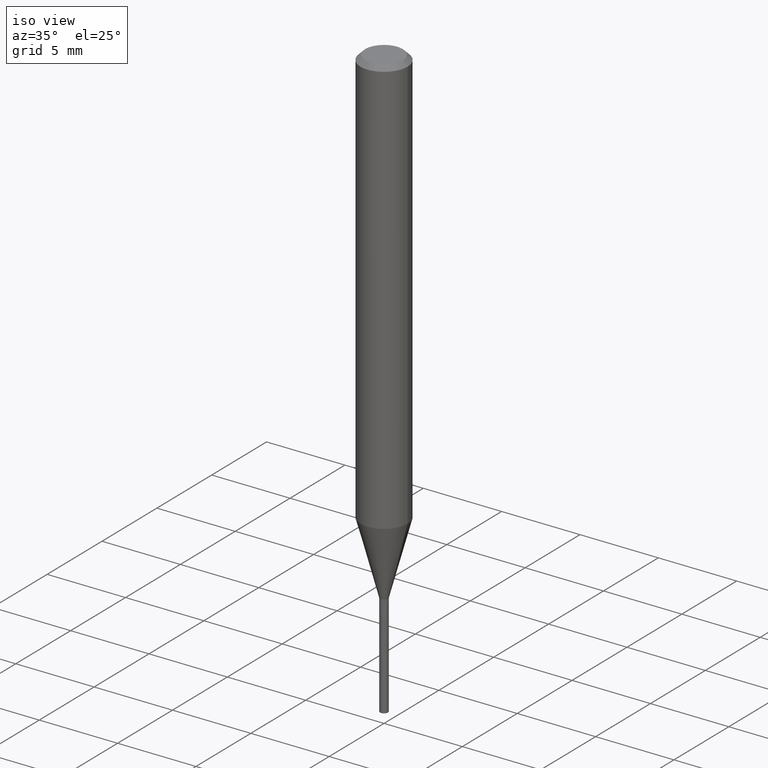
[diagram: clean part render]
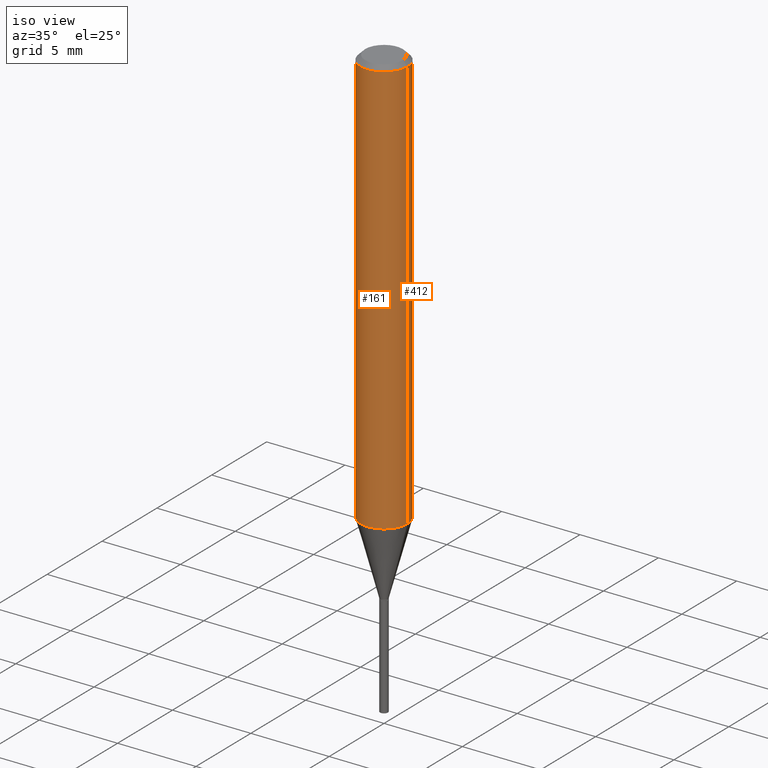
[diagram: same view with one multi-face feature highlighted, each face labeled with its STEP entity id]
A machine part, iso view. The highlighted faces form ONE feature: a constant-radius fillet chain: 2 tangent blend faces with common blend radius 1.4999 mm. The faces share edges in the B-rep.
Their STEP definitions:
[1] entity #412 (Cylinder):
#17 = EDGE_CURVE ( 'NONE', #196, #307, #276, .T. ) ;
#51 = EDGE_CURVE ( 'NONE', #307, #475, #291, .T. ) ;
#94 = DIRECTION ( 'NONE',  ( 1.000000000000000000, -6.982962677686266711E-15, 4.876176775795936353E-29 ) ) ;
#136 = LINE ( 'NONE', #470, #257 ) ;
#146 = EDGE_CURVE ( 'NONE', #270, #475, #318, .T. ) ;
#180 = FACE_OUTER_BOUND ( 'NONE', #373, .T. ) ;
#182 = AXIS2_PLACEMENT_3D ( 'NONE', #403, #409, #303 ) ;
#196 = VERTEX_POINT ( 'NONE', #225 ) ;
#200 = ORIENTED_EDGE ( 'NONE', *, *, #146, .F. ) ;
#203 = CARTESIAN_POINT ( 'NONE',  ( 0.05904999999999999832, -4.535783407291118600E-16, -0.01181000000000007218 ) ) ;
#213 = CARTESIAN_POINT ( 'NONE',  ( -0.05905000000000013016, -3.245373470817042452E-15, -1.049683100267611247 ) ) ;
#225 = CARTESIAN_POINT ( 'NONE',  ( 0.05905000000000013016, -4.077292902400757654E-15, -1.049683100267611247 ) ) ;
#234 = CARTESIAN_POINT ( 'NONE',  ( -0.05904999999999999832, -1.433516189981219950E-15, -0.01181000000000007218 ) ) ;
#257 = VECTOR ( 'NONE', #448, 39.37007874015748143 ) ;
#270 = VERTEX_POINT ( 'NONE', #203 ) ;
#276 = CIRCLE ( 'NONE', #430, 0.05905000000000013710 ) ;
#287 = CARTESIAN_POINT ( 'NONE',  ( 0.000000000000000000, 0.000000000000000000, 0.000000000000000000 ) ) ;
#291 = LINE ( 'NONE', #374, #484 ) ;
#299 = CYLINDRICAL_SURFACE ( 'NONE', #473, 0.05905000000000006771 ) ;
#302 = EDGE_CURVE ( 'NONE', #196, #270, #136, .T. ) ;
#303 = DIRECTION ( 'NONE',  ( 1.000000000000000000, -6.982962677686266711E-15, 0.000000000000000000 ) ) ;
#307 = VERTEX_POINT ( 'NONE', #213 ) ;
#311 = ORIENTED_EDGE ( 'NONE', *, *, #51, .T. ) ;
#318 = CIRCLE ( 'NONE', #182, 0.05904999999999999832 ) ;
#331 = DIRECTION ( 'NONE',  ( 1.000000000000000000, -6.982962677686264344E-15, 0.000000000000000000 ) ) ;
#369 = ORIENTED_EDGE ( 'NONE', *, *, #302, .F. ) ;
#373 = EDGE_LOOP ( 'NONE', ( #411, #311, #200, #369 ) ) ;
#374 = CARTESIAN_POINT ( 'NONE',  ( -0.05905000000000006771, 4.195754854663396409E-16, -2.904631170795525045E-30 ) ) ;
#378 = CARTESIAN_POINT ( 'NONE',  ( 2.566967278084148050E-29, -3.664948956283382734E-15, -1.049683100267611247 ) ) ;
#403 = CARTESIAN_POINT ( 'NONE',  ( 2.888098660104664204E-31, -4.123439461173780263E-17, -0.01181000000000007218 ) ) ;
#409 = DIRECTION ( 'NONE',  ( -2.445468806185136597E-29, 3.491481338843145583E-15, 1.000000000000000000 ) ) ;
#411 = ORIENTED_EDGE ( 'NONE', *, *, #17, .T. ) ;
#412 = ADVANCED_FACE ( 'NONE', ( #180 ), #299, .T. ) ;
#430 = AXIS2_PLACEMENT_3D ( 'NONE', #378, #449, #331 ) ;
#436 = DIRECTION ( 'NONE',  ( -2.445468806185136597E-29, 3.491481338843145583E-15, 1.000000000000000000 ) ) ;
#447 = DIRECTION ( 'NONE',  ( -2.445468806185136877E-29, 3.491481338843145188E-15, 1.000000000000000000 ) ) ;
#448 = DIRECTION ( 'NONE',  ( -2.445468806185136877E-29, 3.491481338843145188E-15, 1.000000000000000000 ) ) ;
#449 = DIRECTION ( 'NONE',  ( -2.445468806185136597E-29, 3.491481338843145583E-15, 1.000000000000000000 ) ) ;
#470 = CARTESIAN_POINT ( 'NONE',  ( 0.05905000000000006771, -4.123439461173745257E-16, 2.879382386107503723E-30 ) ) ;
#473 = AXIS2_PLACEMENT_3D ( 'NONE', #287, #436, #94 ) ;
#475 = VERTEX_POINT ( 'NONE', #234 ) ;
#484 = VECTOR ( 'NONE', #447, 39.37007874015748143 ) ;
[2] entity #161 (Cylinder):
#27 = EDGE_LOOP ( 'NONE', ( #461, #252, #149, #84 ) ) ;
#33 = FACE_OUTER_BOUND ( 'NONE', #27, .T. ) ;
#51 = EDGE_CURVE ( 'NONE', #307, #475, #291, .T. ) ;
#56 = DIRECTION ( 'NONE',  ( -2.445468806185136597E-29, 3.491481338843145583E-15, 1.000000000000000000 ) ) ;
#73 = AXIS2_PLACEMENT_3D ( 'NONE', #253, #100, #226 ) ;
#84 = ORIENTED_EDGE ( 'NONE', *, *, #249, .F. ) ;
#100 = DIRECTION ( 'NONE',  ( -2.445468806185136597E-29, 3.491481338843145583E-15, 1.000000000000000000 ) ) ;
#122 = EDGE_CURVE ( 'NONE', #307, #196, #442, .T. ) ;
#136 = LINE ( 'NONE', #470, #257 ) ;
#149 = ORIENTED_EDGE ( 'NONE', *, *, #302, .T. ) ;
#150 = CYLINDRICAL_SURFACE ( 'NONE', #236, 0.05905000000000006771 ) ;
#161 = ADVANCED_FACE ( 'NONE', ( #33 ), #150, .T. ) ;
#184 = CARTESIAN_POINT ( 'NONE',  ( 0.000000000000000000, 0.000000000000000000, 0.000000000000000000 ) ) ;
#196 = VERTEX_POINT ( 'NONE', #225 ) ;
#203 = CARTESIAN_POINT ( 'NONE',  ( 0.05904999999999999832, -4.535783407291118600E-16, -0.01181000000000007218 ) ) ;
#208 = DIRECTION ( 'NONE',  ( 1.000000000000000000, -6.982962677686266711E-15, 0.000000000000000000 ) ) ;
#213 = CARTESIAN_POINT ( 'NONE',  ( -0.05905000000000013016, -3.245373470817042452E-15, -1.049683100267611247 ) ) ;
#218 = DIRECTION ( 'NONE',  ( -2.445468806185136597E-29, 3.491481338843145583E-15, 1.000000000000000000 ) ) ;
#225 = CARTESIAN_POINT ( 'NONE',  ( 0.05905000000000013016, -4.077292902400757654E-15, -1.049683100267611247 ) ) ;
#226 = DIRECTION ( 'NONE',  ( 1.000000000000000000, -6.982962677686264344E-15, 0.000000000000000000 ) ) ;
#234 = CARTESIAN_POINT ( 'NONE',  ( -0.05904999999999999832, -1.433516189981219950E-15, -0.01181000000000007218 ) ) ;
#236 = AXIS2_PLACEMENT_3D ( 'NONE', #184, #218, #329 ) ;
#249 = EDGE_CURVE ( 'NONE', #475, #270, #334, .T. ) ;
#252 = ORIENTED_EDGE ( 'NONE', *, *, #122, .T. ) ;
#253 = CARTESIAN_POINT ( 'NONE',  ( 2.566967278084148050E-29, -3.664948956283382734E-15, -1.049683100267611247 ) ) ;
#257 = VECTOR ( 'NONE', #448, 39.37007874015748143 ) ;
#270 = VERTEX_POINT ( 'NONE', #203 ) ;
#291 = LINE ( 'NONE', #374, #484 ) ;
#302 = EDGE_CURVE ( 'NONE', #196, #270, #136, .T. ) ;
#307 = VERTEX_POINT ( 'NONE', #213 ) ;
#329 = DIRECTION ( 'NONE',  ( 1.000000000000000000, -6.982962677686266711E-15, 4.876176775795936353E-29 ) ) ;
#334 = CIRCLE ( 'NONE', #377, 0.05904999999999999832 ) ;
#374 = CARTESIAN_POINT ( 'NONE',  ( -0.05905000000000006771, 4.195754854663396409E-16, -2.904631170795525045E-30 ) ) ;
#377 = AXIS2_PLACEMENT_3D ( 'NONE', #396, #56, #208 ) ;
#396 = CARTESIAN_POINT ( 'NONE',  ( 2.888098660104664204E-31, -4.123439461173780263E-17, -0.01181000000000007218 ) ) ;
#442 = CIRCLE ( 'NONE', #73, 0.05905000000000013710 ) ;
#447 = DIRECTION ( 'NONE',  ( -2.445468806185136877E-29, 3.491481338843145188E-15, 1.000000000000000000 ) ) ;
#448 = DIRECTION ( 'NONE',  ( -2.445468806185136877E-29, 3.491481338843145188E-15, 1.000000000000000000 ) ) ;
#461 = ORIENTED_EDGE ( 'NONE', *, *, #51, .F. ) ;
#470 = CARTESIAN_POINT ( 'NONE',  ( 0.05905000000000006771, -4.123439461173745257E-16, 2.879382386107503723E-30 ) ) ;
#475 = VERTEX_POINT ( 'NONE', #234 ) ;
#484 = VECTOR ( 'NONE', #447, 39.37007874015748143 ) ;